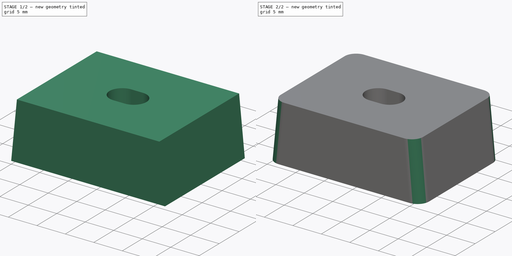
[diagram: build sequence overview — one tinted view per stage of 2, left to right]
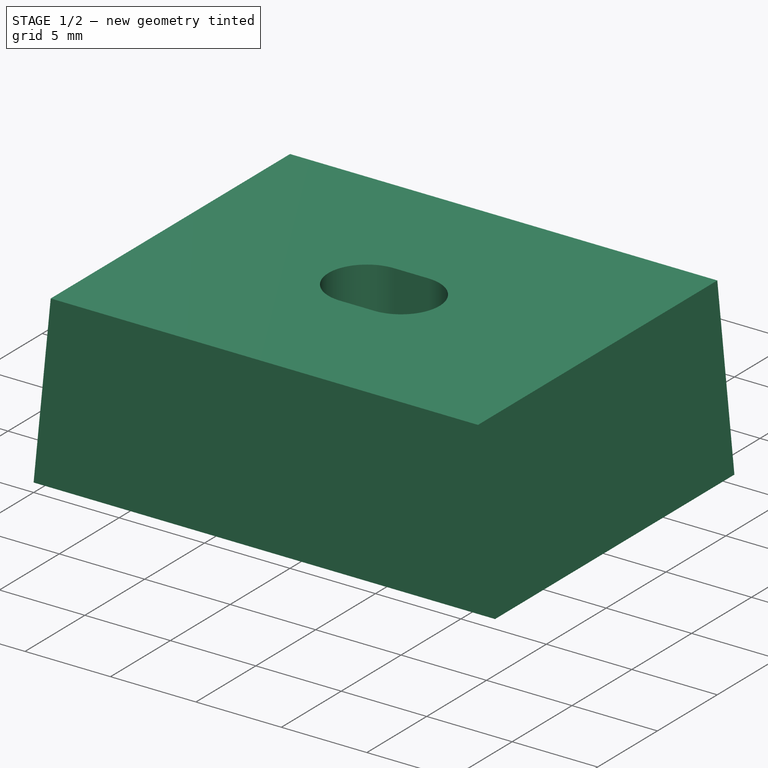
[diagram: stage 1 of 2 — iso view after this stage's code; geometry added in this stage tinted green]
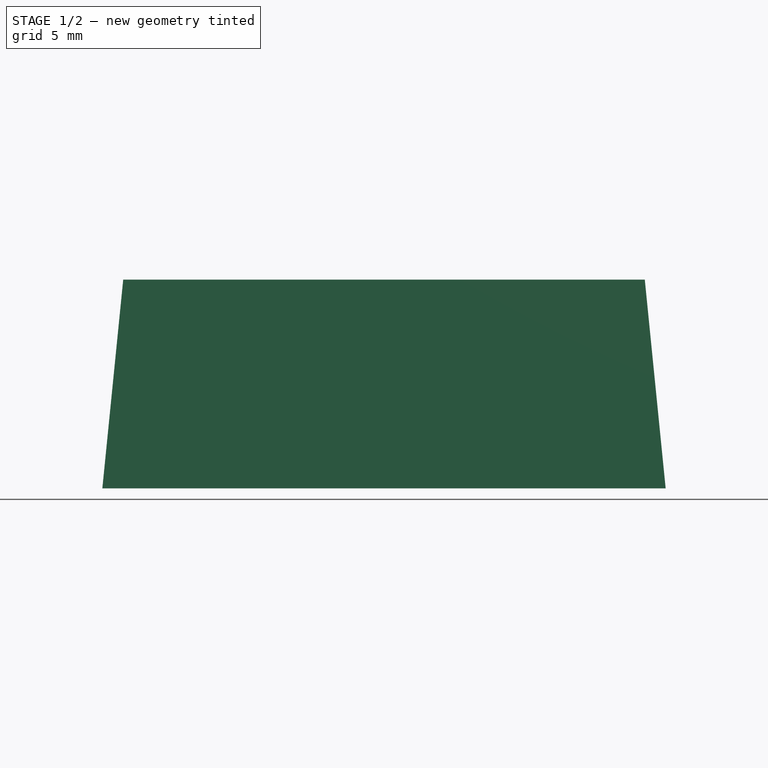
[diagram: stage 1 of 2 — front view after this stage's code; geometry added in this stage tinted green]
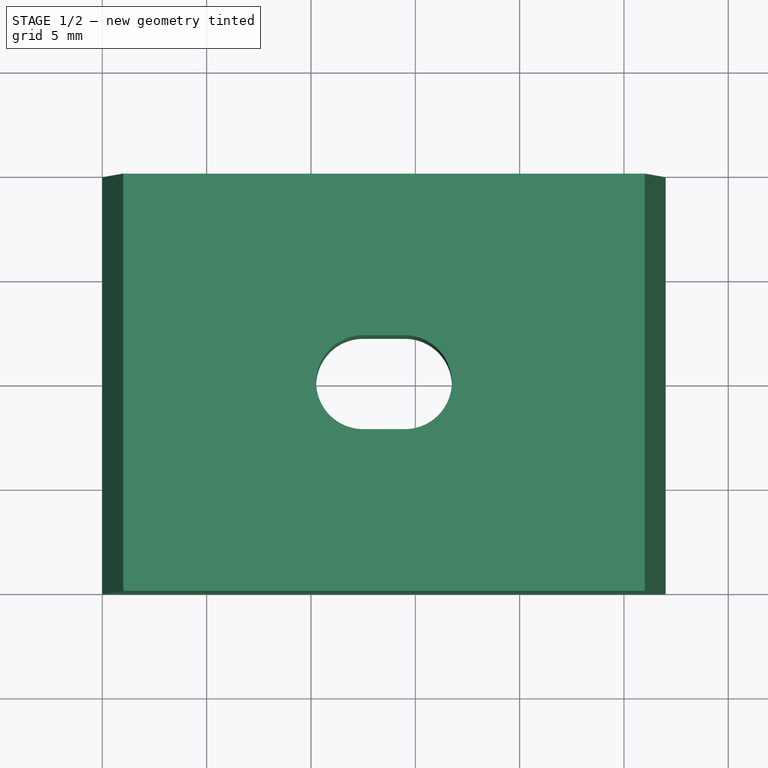
[diagram: stage 1 of 2 — top view after this stage's code; geometry added in this stage tinted green]
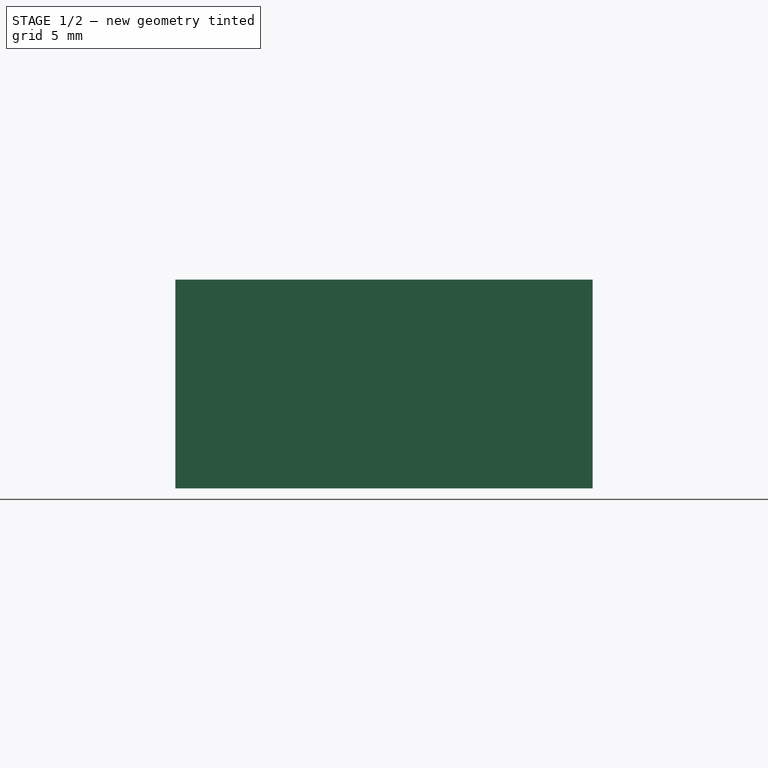
[diagram: stage 1 of 2 — right view after this stage's code; geometry added in this stage tinted green]
FCSTD DOCUMENT  (FreeCAD 1.0R39109 (Git))
Label: Wedge with Hole
License: All rights reserved
LicenseURL: http://en.wikipedia.org/wiki/All_rights_reserved
objects: Sketcher::SketchObject×2, Spreadsheet::Sheet×1, PartDesign::Pad×1, PartDesign::Pocket×1, PartDesign::Chamfer×1, PartDesign::Fillet×1, PartDesign::Body×1
note: 17 computed .brp shape members not serialized (recipe doc carries the construction recipe); baked Part::Feature solids carry a one-line shape summary decoded from their .brp

FEATURE [Spreadsheet::Sheet] Spreadsheet
  cells = A1='wide_width; B1(wide_width)=27; A2='narrow_width; B2(narrow_width)=25; A3='thickness; B3(thickness)=20; A4='hole_diameter; B4(hole_diameter)=4.5; A5='height; B5(height)=10; A6='indentation_depth; B6(indentation_depth)=3.5; A7='indentation_width; B7(indentation_width)=2; A8='hole_slot_length; B8(hole_slot_length)=2; A9='edge_smoothing_radius; B9(edge_smoothing_radius)=2
FEATURE [Sketcher::SketchObject] Sketch
  ArcFitTolerance = 1e-06
  AttachmentSupport = -> [XZ_Plane]
  FullyConstrained = true
  MakeInternals = false
  MapMode = 5
  Placement = pos=(0,0,0) rot=(1,0,0;1.5708rad)
  expr: Constraints[10] = Spreadsheet.narrow_width
  expr: Constraints[5] = Spreadsheet.wide_width
  expr: Constraints[8] = Spreadsheet.height
  expr: Constraints[9] = (Spreadsheet.wide_width * 1 mm - Spreadsheet.narrow_width * 1 mm) / 2
  sketch-geometry (4):
    g0: LineSegment StartX=0 StartY=5e-16 StartZ=0 EndX=27 EndY=0 EndZ=0
    g1: LineSegment StartX=26 StartY=10 StartZ=0 EndX=1 EndY=10 EndZ=0
    g2: LineSegment StartX=1 StartY=10 StartZ=0 EndX=0 EndY=1e-16 EndZ=0
    g3: LineSegment StartX=27 StartY=0 StartZ=0 EndX=26 EndY=10 EndZ=0
  constraints (11):
    c: Coincident(g0,g-1)
    c: PointOnObject(g0,g-1)
    c: Horizontal(g1)
    c: Coincident(g2,g1)
    c: Coincident(g2,g0)
    c: DistanceX(g0,g0) = 27
    c: Coincident(g3,g0)
    c: Coincident(g3,g1)
    c: DistanceY(g0,g1) = 10
    c: DistanceX(g0,g1) = 1
    c: DistanceX(g1,g1) = 25
FEATURE [PartDesign::Pad] Pad
  Direction = (0,-1,2e-16)
  Length = 20
  Length2 = 10
  Placement = pos=(0,0,0) rot=(1,0,0;1.5708rad)
  Profile = -> Sketch
  ReferenceAxis = -> Sketch [N_Axis]
  Suppressed = false
  Type = 0
  expr: Length = Spreadsheet.thickness
FEATURE [Sketcher::SketchObject] Sketch001
  ArcFitTolerance = 1e-06
  AttachmentSupport = -> [Pad]
  FullyConstrained = true
  MakeInternals = false
  MapMode = 5
  Placement = pos=(0,0,5e-16) rot=(1,0,0;3.14159rad)
  expr: Constraints[6] = Spreadsheet.hole_diameter
  expr: Constraints[7] = Spreadsheet.thickness / 2
  expr: Constraints[8] = Spreadsheet.hole_slot_length
  expr: Constraints[9] = Spreadsheet.wide_width / 2 - Spreadsheet.hole_slot_length / 2
  sketch-geometry (4):
    g0: ArcOfCircle CenterX=12.5 CenterY=10 CenterZ=0 NormalX=0 NormalY=0 NormalZ=1 AngleXU=0 Radius=2.25 StartAngle=1.5708 EndAngle=4.71239
    g1: ArcOfCircle CenterX=14.5 CenterY=10 CenterZ=0 NormalX=0 NormalY=0 NormalZ=1 AngleXU=0 Radius=2.25 StartAngle=4.71239 EndAngle=7.85398
    g2: LineSegment StartX=12.5 StartY=12.25 StartZ=0 EndX=14.5 EndY=12.25 EndZ=0
    g3: LineSegment StartX=12.5 StartY=7.75 StartZ=0 EndX=14.5 EndY=7.75 EndZ=0
  constraints (10):
    c: Tangent(g0,g2) = 1.5708
    c: Tangent(g0,g3) = -1.5708
    c: Tangent(g1,g2) = 1.5708
    c: Tangent(g1,g3) = -1.5708
    c: Equal(g0,g1)
    c: Horizontal(g2)
    c: Diameter(g1) = 4.5
    c: DistanceY(g-1,g0) = 10
    c: DistanceX(g0,g1) = 2
    c: DistanceX(g-1,g0) = 12.5
FEATURE [PartDesign::Pocket] Pocket
  BaseFeature = -> Pad
  Direction = (0,0,1)
  Length = 5
  Length2 = 5
  Placement = pos=(0,0,0) rot=(1,0,0;1.5708rad)
  Profile = -> Sketch001
  ReferenceAxis = -> Sketch001 [N_Axis]
  Suppressed = false
  Type = 1
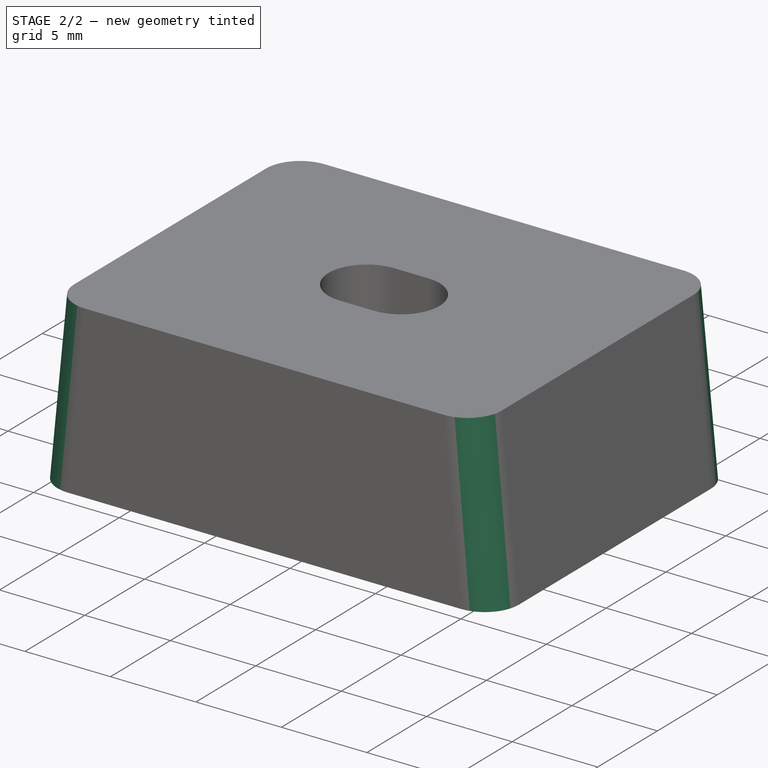
[diagram: stage 2 of 2 — iso view after this stage's code; geometry added in this stage tinted green]
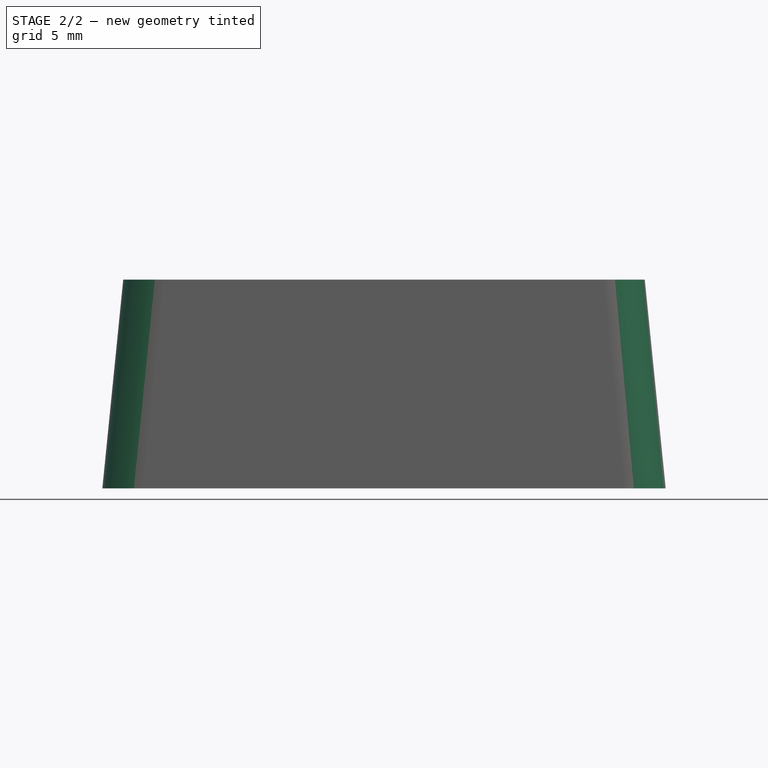
[diagram: stage 2 of 2 — front view after this stage's code; geometry added in this stage tinted green]
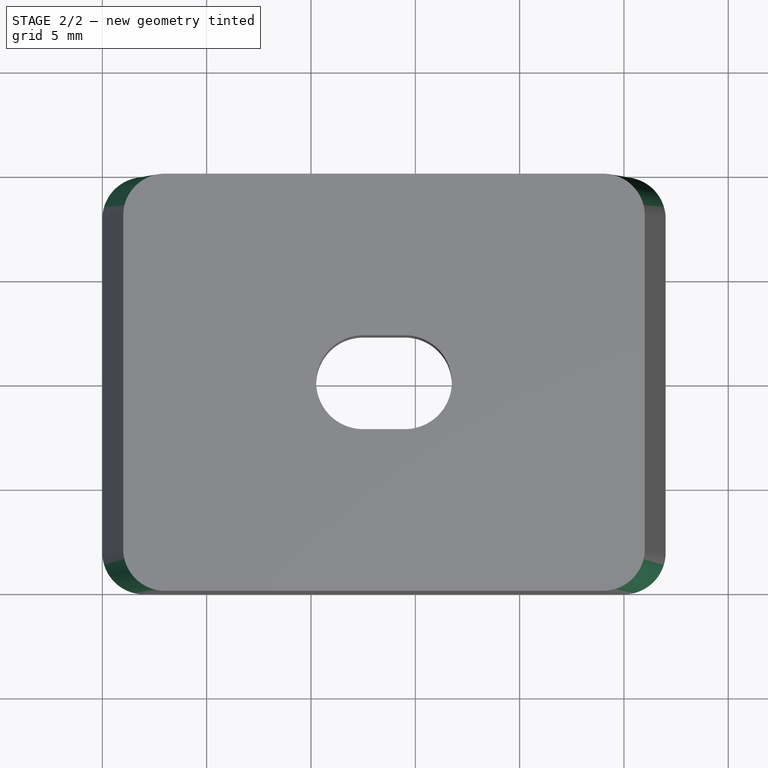
[diagram: stage 2 of 2 — top view after this stage's code; geometry added in this stage tinted green]
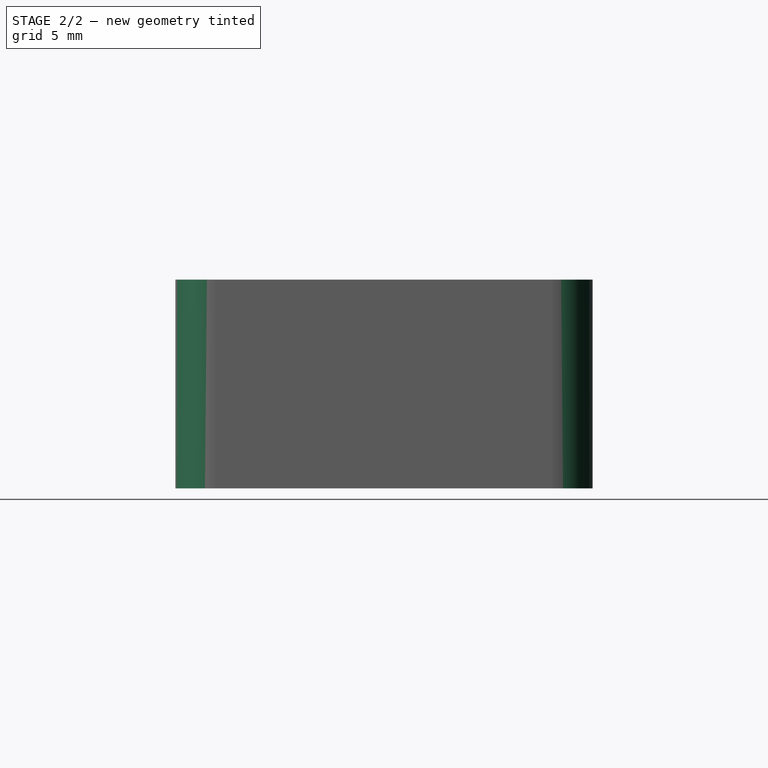
[diagram: stage 2 of 2 — right view after this stage's code; geometry added in this stage tinted green]
FEATURE [PartDesign::Chamfer] Chamfer
  Angle = 45
  Base = -> Pocket [Edge8,Edge5,Edge6,Edge7]
  BaseFeature = -> Pocket
  ChamferType = 1
  FlipDirection = false
  Placement = pos=(0,0,0) rot=(1,0,0;1.5708rad)
  Size = 2
  Size2 = 3.5
  SupportTransform = false
  Suppressed = false
  UseAllEdges = false
  expr: Size = Spreadsheet.indentation_width
  expr: Size2 = Spreadsheet.indentation_depth
FEATURE [PartDesign::Fillet] Fillet
  Base = -> Chamfer [Edge22,Edge19,Edge20,Edge18]
  BaseFeature = -> Chamfer
  Placement = pos=(0,0,0) rot=(1,0,0;1.5708rad)
  Radius = 2
  SupportTransform = false
  Suppressed = false
  UseAllEdges = false
  expr: Radius = Spreadsheet.edge_smoothing_radius
FEATURE [PartDesign::Body] Body
  AllowCompound = false
  Group = -> [Sketch,Pad,Sketch001,Pocket,Chamfer,Fillet]
  Origin = -> Origin
  Tip = -> Fillet
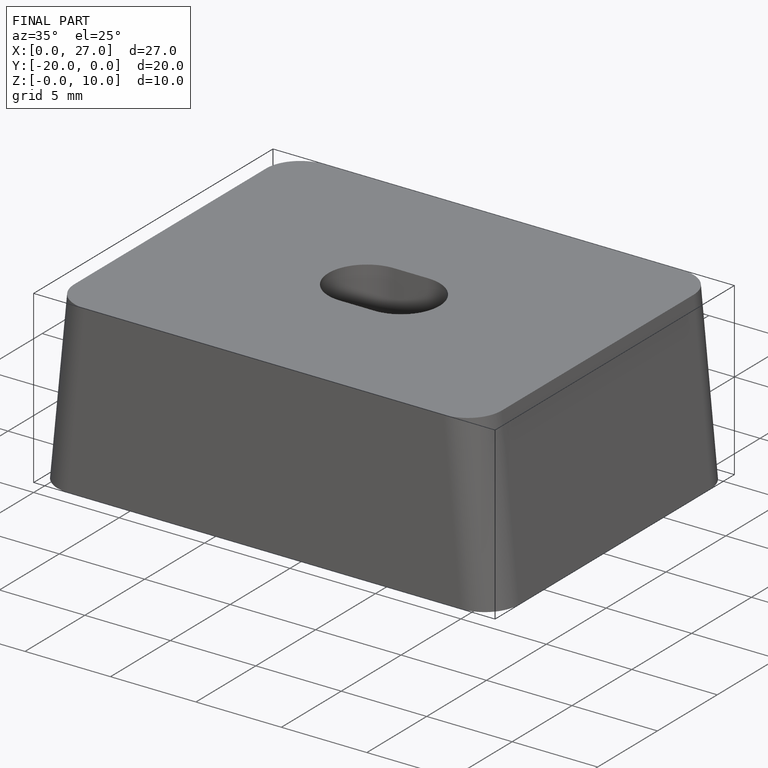
[diagram: finished part — iso view with bounding-box wireframe]
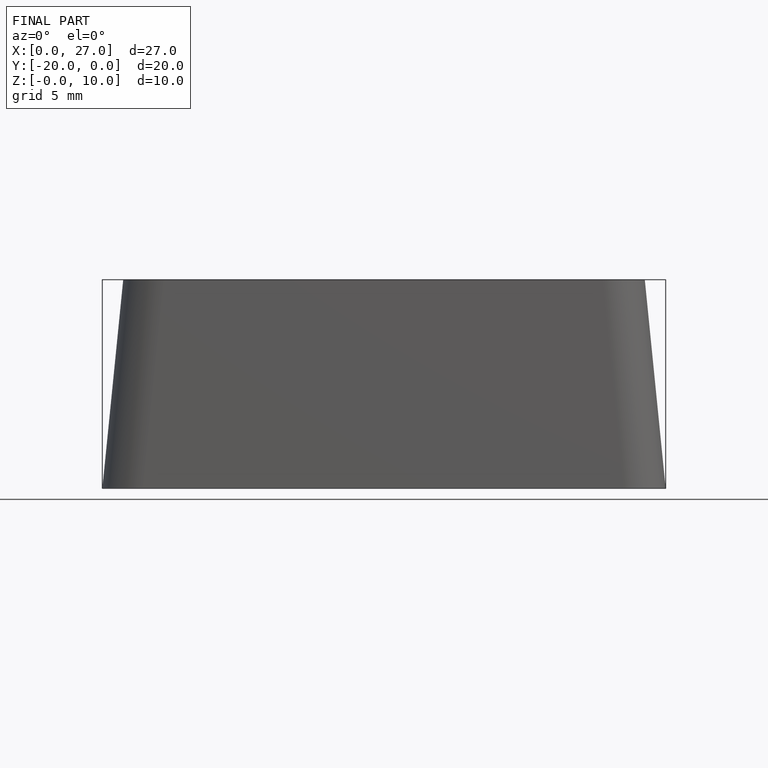
[diagram: finished part — front view with bounding-box wireframe]
